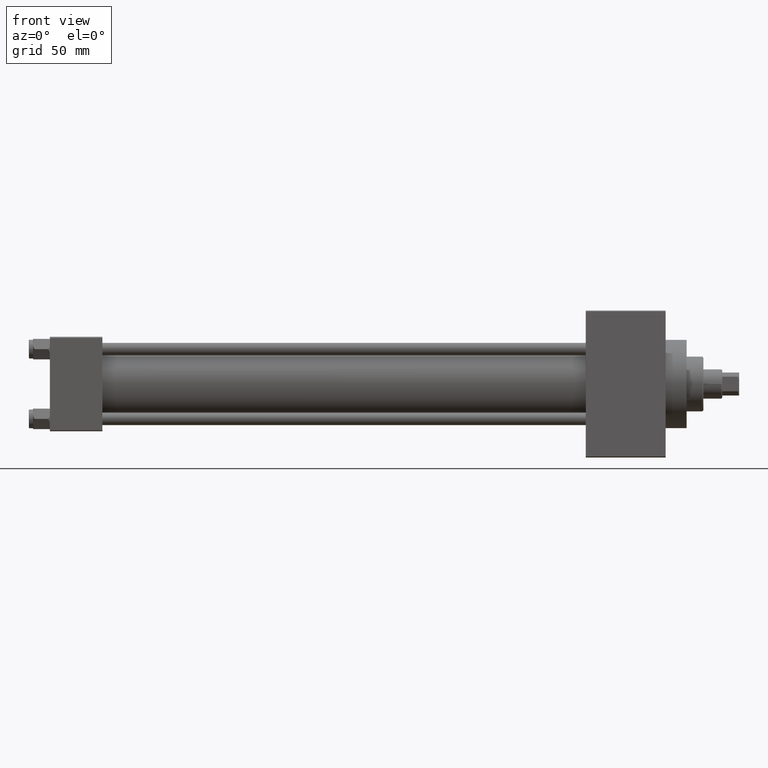
[diagram: clean part render]
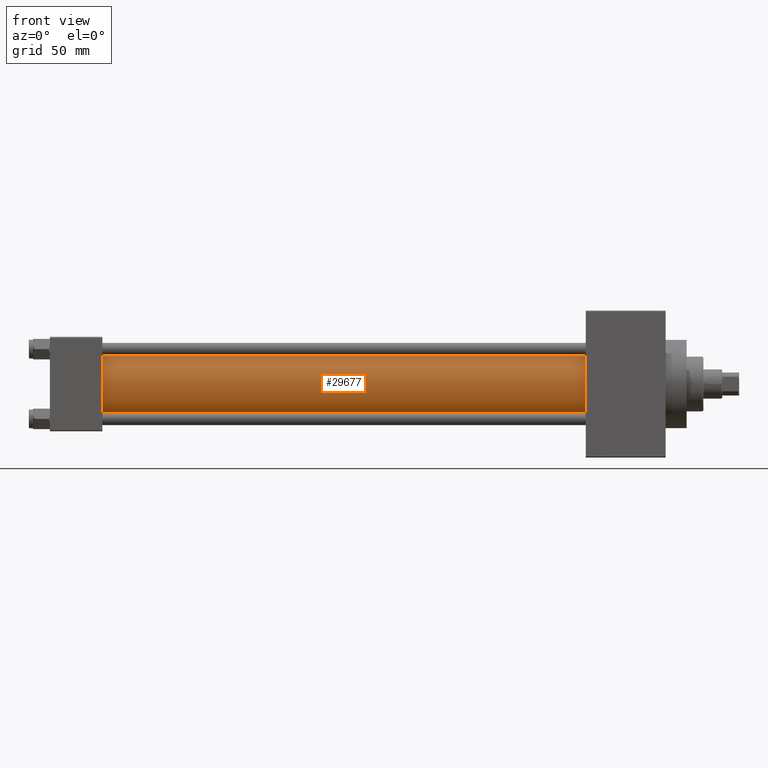
[diagram: same view with one face highlighted and labeled with its STEP entity id]
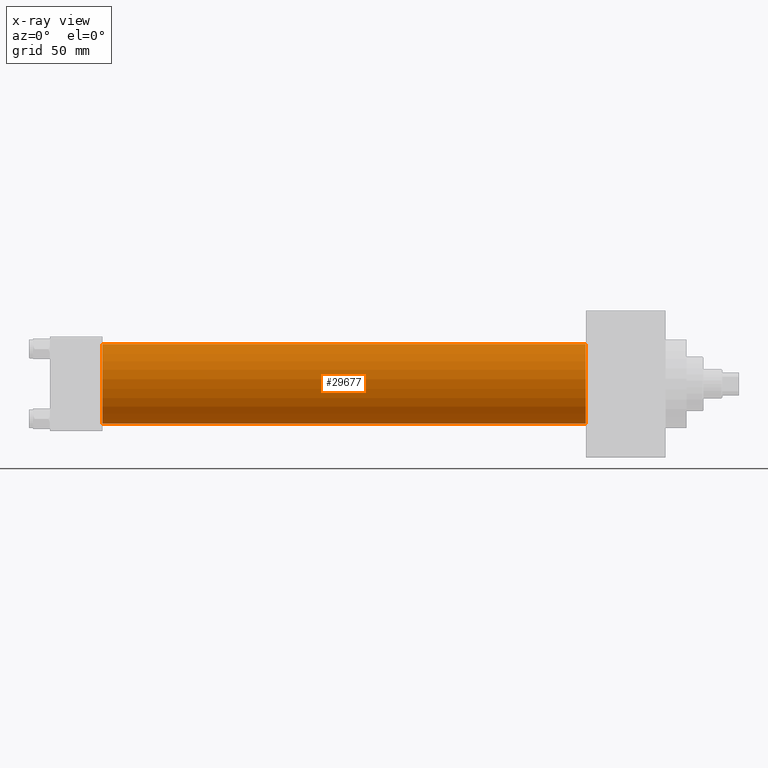
[diagram: x-ray of the same camera — body ghosted, the highlighted face saturated]
A machine part, front view. The second image highlights one B-rep face of the part: STEP entity #29677.
The next image is the same camera in x-ray: the body ghosted, the highlighted face saturated — about 0% of this face is hidden behind the body in this view.
In plain terms, the highlighted cylindrical surface (partial cylindrical patch) has radius 19 mm, axis along (-1, -0, -0).
Its self-contained STEP definition (entity closure, byte-faithful):
#139 = CARTESIAN_POINT ( 'NONE',  ( 255.0000000000000000, -2.602085213965210642E-15, 0.000000000000000000 ) ) ;
#366 = VECTOR ( 'NONE', #11581, 1000.000000000000000 ) ;
#690 = AXIS2_PLACEMENT_3D ( 'NONE', #12515, #34926, #23015 ) ;
#1436 = CARTESIAN_POINT ( 'NONE',  ( 255.0000000000000000, -2.602085213965210642E-15, 19.00000000000000000 ) ) ;
#5268 = EDGE_CURVE ( 'NONE', #15502, #47093, #45916, .T. ) ;
#5365 = LINE ( 'NONE', #40907, #366 ) ;
#11581 = DIRECTION ( 'NONE',  ( -1.000000000000000000, -0.000000000000000000, -0.000000000000000000 ) ) ;
#12515 = CARTESIAN_POINT ( 'NONE',  ( 255.0000000000000000, -2.602085213965210642E-15, 0.000000000000000000 ) ) ;
#12758 = VERTEX_POINT ( 'NONE', #34540 ) ;
#13127 = EDGE_CURVE ( 'NONE', #15502, #12758, #5365, .T. ) ;
#13497 = LINE ( 'NONE', #28042, #47057 ) ;
#15234 = DIRECTION ( 'NONE',  ( 0.000000000000000000, 0.000000000000000000, 1.000000000000000000 ) ) ;
#15502 = VERTEX_POINT ( 'NONE', #1436 ) ;
#16093 = FACE_OUTER_BOUND ( 'NONE', #31040, .T. ) ;
#17313 = DIRECTION ( 'NONE',  ( -1.000000000000000000, -0.000000000000000000, -0.000000000000000000 ) ) ;
#17370 = CARTESIAN_POINT ( 'NONE',  ( 255.0000000000000000, -2.752562955852396712E-16, -19.00000000000000000 ) ) ;
#17673 = CARTESIAN_POINT ( 'NONE',  ( 24.99999999999999289, -2.752562955852396712E-16, -19.00000000000000000 ) ) ;
#17905 = ORIENTED_EDGE ( 'NONE', *, *, #5268, .F. ) ;
#20388 = CYLINDRICAL_SURFACE ( 'NONE', #690, 19.00000000000000000 ) ;
#20572 = EDGE_CURVE ( 'NONE', #47093, #27222, #13497, .T. ) ;
#21442 = ORIENTED_EDGE ( 'NONE', *, *, #20572, .F. ) ;
#21565 = ORIENTED_EDGE ( 'NONE', *, *, #34882, .T. ) ;
#23015 = DIRECTION ( 'NONE',  ( 0.000000000000000000, 0.000000000000000000, 1.000000000000000000 ) ) ;
#24501 = DIRECTION ( 'NONE',  ( 0.000000000000000000, 0.000000000000000000, -1.000000000000000000 ) ) ;
#27222 = VERTEX_POINT ( 'NONE', #17673 ) ;
#27655 = ORIENTED_EDGE ( 'NONE', *, *, #13127, .T. ) ;
#28042 = CARTESIAN_POINT ( 'NONE',  ( 255.0000000000000000, -2.752562955852396712E-16, -19.00000000000000000 ) ) ;
#28294 = DIRECTION ( 'NONE',  ( 1.000000000000000000, 0.000000000000000000, 0.000000000000000000 ) ) ;
#29313 = CARTESIAN_POINT ( 'NONE',  ( 24.99999999999999289, -2.602085213965210642E-15, 0.000000000000000000 ) ) ;
#29677 = ADVANCED_FACE ( 'NONE', ( #16093 ), #20388, .T. ) ;
#31040 = EDGE_LOOP ( 'NONE', ( #21442, #17905, #27655, #21565 ) ) ;
#34540 = CARTESIAN_POINT ( 'NONE',  ( 24.99999999999999289, -2.602085213965210642E-15, 19.00000000000000000 ) ) ;
#34882 = EDGE_CURVE ( 'NONE', #12758, #27222, #41799, .T. ) ;
#34926 = DIRECTION ( 'NONE',  ( -1.000000000000000000, -0.000000000000000000, -0.000000000000000000 ) ) ;
#36795 = AXIS2_PLACEMENT_3D ( 'NONE', #139, #28294, #24501 ) ;
#40907 = CARTESIAN_POINT ( 'NONE',  ( 255.0000000000000000, -2.602085213965210642E-15, 19.00000000000000000 ) ) ;
#41799 = CIRCLE ( 'NONE', #45606, 19.00000000000000000 ) ;
#43609 = DIRECTION ( 'NONE',  ( 1.000000000000000000, -0.000000000000000000, 0.000000000000000000 ) ) ;
#45606 = AXIS2_PLACEMENT_3D ( 'NONE', #29313, #43609, #15234 ) ;
#45916 = CIRCLE ( 'NONE', #36795, 19.00000000000000000 ) ;
#47057 = VECTOR ( 'NONE', #17313, 1000.000000000000000 ) ;
#47093 = VERTEX_POINT ( 'NONE', #17370 ) ;